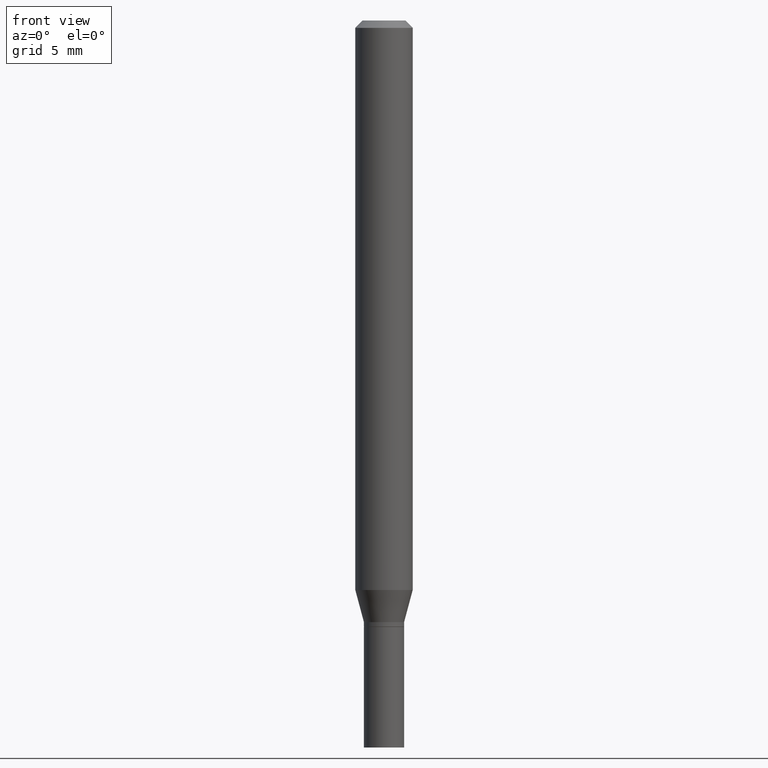
[diagram: clean part render]
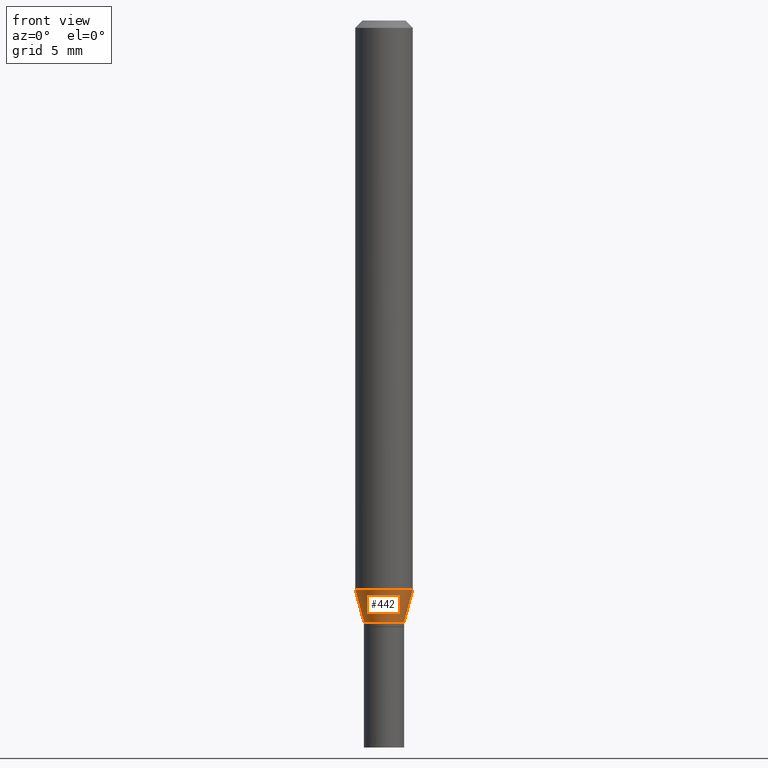
[diagram: same view with one face highlighted and labeled with its STEP entity id]
A machine part, front view. The second image highlights one B-rep face of the part: STEP entity #442.
In plain terms, the highlighted conical surface has half-angle 15 deg.
Its self-contained STEP definition (entity closure, byte-faithful):
#24 = DIRECTION ( 'NONE',  ( 0.2588190451025206840, 1.565188264969626504E-15, 0.9659258262890682012 ) ) ;
#45 = DIRECTION ( 'NONE',  ( -2.445468806185136597E-29, 3.491481338843145583E-15, 1.000000000000000000 ) ) ;
#47 = EDGE_CURVE ( 'NONE', #335, #136, #387, .T. ) ;
#53 = AXIS2_PLACEMENT_3D ( 'NONE', #296, #45, #434 ) ;
#75 = CARTESIAN_POINT ( 'NONE',  ( -0.05904999999999999832, -3.672589732376084580E-15, -1.172042700706029450 ) ) ;
#94 = CARTESIAN_POINT ( 'NONE',  ( 2.866193864093577193E-29, -4.092165217842424073E-15, -1.172042700706029450 ) ) ;
#98 = CARTESIAN_POINT ( 'NONE',  ( 3.027734928937817340E-29, -4.322803045621698320E-15, -1.238099999999999756 ) ) ;
#114 = AXIS2_PLACEMENT_3D ( 'NONE', #98, #240, #281 ) ;
#120 = CARTESIAN_POINT ( 'NONE',  ( 0.04134999999999966480, -4.611548552344022899E-15, -1.238099999999999756 ) ) ;
#135 = FACE_OUTER_BOUND ( 'NONE', #372, .T. ) ;
#136 = VERTEX_POINT ( 'NONE', #292 ) ;
#153 = CONICAL_SURFACE ( 'NONE', #114, 0.04134999999999966480, 0.2617993877991494078 ) ;
#157 = VECTOR ( 'NONE', #24, 39.37007874015748854 ) ;
#163 = CARTESIAN_POINT ( 'NONE',  ( -0.04134999999999966480, -3.850791678380491533E-15, -1.238099999999999756 ) ) ;
#168 = CARTESIAN_POINT ( 'NONE',  ( 0.04134999999999966480, -4.611548552344022899E-15, -1.238099999999999756 ) ) ;
#179 = EDGE_CURVE ( 'NONE', #280, #335, #242, .T. ) ;
#217 = VERTEX_POINT ( 'NONE', #75 ) ;
#236 = LINE ( 'NONE', #379, #376 ) ;
#240 = DIRECTION ( 'NONE',  ( -2.445468806185136597E-29, 3.491481338843145583E-15, 1.000000000000000000 ) ) ;
#242 = CIRCLE ( 'NONE', #53, 0.04134999999999966480 ) ;
#266 = DIRECTION ( 'NONE',  ( -2.445468806185136597E-29, 3.491481338843145583E-15, 1.000000000000000000 ) ) ;
#267 = ORIENTED_EDGE ( 'NONE', *, *, #47, .T. ) ;
#275 = DIRECTION ( 'NONE',  ( 1.000000000000000000, -6.982962677686265133E-15, 0.000000000000000000 ) ) ;
#280 = VERTEX_POINT ( 'NONE', #163 ) ;
#281 = DIRECTION ( 'NONE',  ( 1.000000000000000000, -6.982962677686271444E-15, 0.000000000000000000 ) ) ;
#292 = CARTESIAN_POINT ( 'NONE',  ( 0.05904999999999999832, -4.504509163959798204E-15, -1.172042700706029450 ) ) ;
#296 = CARTESIAN_POINT ( 'NONE',  ( 3.027734928937817340E-29, -4.322803045621698320E-15, -1.238099999999999756 ) ) ;
#315 = ORIENTED_EDGE ( 'NONE', *, *, #179, .T. ) ;
#316 = ORIENTED_EDGE ( 'NONE', *, *, #386, .F. ) ;
#335 = VERTEX_POINT ( 'NONE', #120 ) ;
#372 = EDGE_LOOP ( 'NONE', ( #460, #315, #267, #316 ) ) ;
#376 = VECTOR ( 'NONE', #414, 39.37007874015748854 ) ;
#379 = CARTESIAN_POINT ( 'NONE',  ( -0.04134999999999966480, -4.028993624384898486E-15, -1.238099999999999756 ) ) ;
#386 = EDGE_CURVE ( 'NONE', #217, #136, #438, .T. ) ;
#387 = LINE ( 'NONE', #168, #157 ) ;
#408 = EDGE_CURVE ( 'NONE', #280, #217, #236, .T. ) ;
#414 = DIRECTION ( 'NONE',  ( -0.2588190451025206840, 5.211531920934545520E-15, 0.9659258262890682012 ) ) ;
#429 = AXIS2_PLACEMENT_3D ( 'NONE', #94, #266, #275 ) ;
#434 = DIRECTION ( 'NONE',  ( 1.000000000000000000, -6.982962677686271444E-15, 0.000000000000000000 ) ) ;
#438 = CIRCLE ( 'NONE', #429, 0.05904999999999999832 ) ;
#442 = ADVANCED_FACE ( 'NONE', ( #135 ), #153, .T. ) ;
#460 = ORIENTED_EDGE ( 'NONE', *, *, #408, .F. ) ;